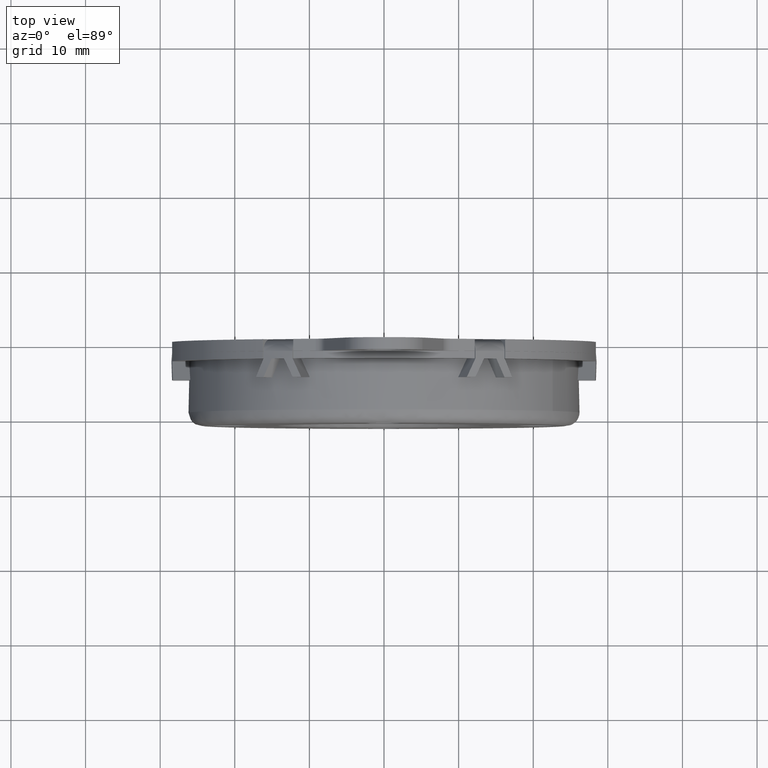
[diagram: clean part render]
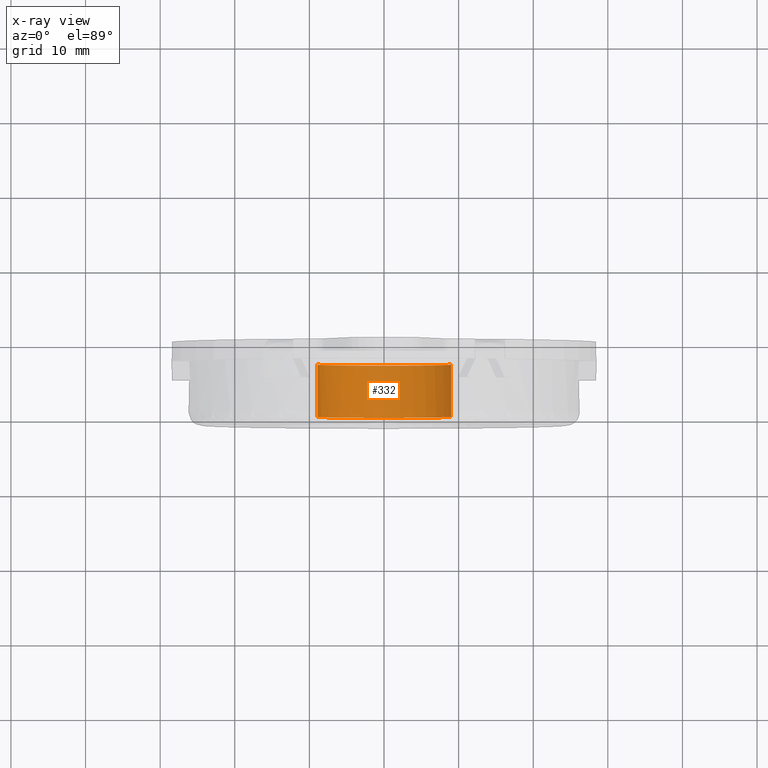
[diagram: x-ray — body ghosted, one internal face saturated and labeled with its STEP entity id]
A machine part, top view, then the same camera in x-ray: the body is ghosted and one INTERNAL B-rep face — a face not visible from any outside direction — is saturated and labeled: STEP entity #332.
In plain terms, the highlighted face is a freeform B-spline surface patch.
Its self-contained STEP definition (entity closure, byte-faithful):
#230=CARTESIAN_POINT('',(-8.946170441121918,-2.825000000000000,-0.991052188779172));
#231=CARTESIAN_POINT('',(-8.938302605565998,-2.824999999999999,-1.053946840004247));
#232=CARTESIAN_POINT('',(-7.935581323198988,-2.825000000000000,-9.069595474522000));
#233=CARTESIAN_POINT('',(0.078538819485365,-2.824999999999999,-8.999657307577538));
#234=CARTESIAN_POINT('',(9.078196127062903,-2.824999999999999,-8.921118488092173));
#235=CARTESIAN_POINT('',(8.999125662922731,-2.824999999999998,0.139459262827968));
#236=CARTESIAN_POINT('',(8.998596991281101,-2.824999999999999,0.200039032604139));
#237=CARTESIAN_POINT('',(-8.946170441121918,-10.179375000000004,-0.991052188779172));
#238=CARTESIAN_POINT('',(-8.938302605565998,-10.179375000000004,-1.053946840004247));
#239=CARTESIAN_POINT('',(-7.935581323198988,-10.179375000000002,-9.069595474522000));
#240=CARTESIAN_POINT('',(0.078538819485365,-10.179375000000000,-8.999657307577538));
#241=CARTESIAN_POINT('',(9.078196127062903,-10.179375000000002,-8.921118488092173));
#242=CARTESIAN_POINT('',(8.999125662922731,-10.179374999999999,0.139459262827968));
#243=CARTESIAN_POINT('',(8.998596991281101,-10.179374999999999,0.200039032604139));
#251=(BOUNDED_SURFACE()B_SPLINE_SURFACE(2,1,((#230,#237),(#231,#238),(#232,#239),(#233,#240),(#234,#241),(#235,#242),(#236,#243)),.UNSPECIFIED.,.F.,.F.,.U.)B_SPLINE_SURFACE_WITH_KNOTS((3,1,2,1,3),(2,2),(0.0,0.143170918005522,13.861924103802419,28.773612349233840,28.916764646376279),(0.0,7.354375000000005),.UNSPECIFIED.)GEOMETRIC_REPRESENTATION_ITEM()RATIONAL_B_SPLINE_SURFACE(((0.961610517450212,0.961610517450212),(0.959248317820436,0.959248317820436),(0.730538238691624,0.730538238691624),(1.0,1.0),(0.707106781186548,0.707106781186548),(1.002811776668107,1.002811776668107),(1.005623553336214,1.005623553336214)))REPRESENTATION_ITEM('')SURFACE());
#252=CARTESIAN_POINT('',(-8.930395924418910,-10.0,-1.117152018805907));
#253=VERTEX_POINT('',#252);
#254=CARTESIAN_POINT('',(0.0,-10.0,-9.0));
#255=VERTEX_POINT('',#254);
#256=CARTESIAN_POINT('',(-8.930395924418910,-10.0,-1.117152018805907));
#257=CARTESIAN_POINT('',(-7.944287401195272,-10.000000000000002,-9.000000000000002));
#258=CARTESIAN_POINT('',(0.0,-10.0,-9.0));
#266=(BOUNDED_CURVE()B_SPLINE_CURVE(2,(#256,#257,#258),.UNSPECIFIED.,.F.,.U.)B_SPLINE_CURVE_WITH_KNOTS((3,3),(0.271473928974004,0.500000000000000),.UNSPECIFIED.)CURVE()GEOMETRIC_REPRESENTATION_ITEM()RATIONAL_B_SPLINE_CURVE((0.954005430268310,0.732265053897617,1.0))REPRESENTATION_ITEM(''));
#267=EDGE_CURVE('',#253,#255,#266,.T.);
#268=ORIENTED_EDGE('',*,*,#267,.F.);
#269=CARTESIAN_POINT('',(-8.930397986177338,-3.0,-1.117135537078565));
#270=VERTEX_POINT('',#269);
#271=CARTESIAN_POINT('',(-8.930397986177338,-3.0,-1.117135537078565));
#272=CARTESIAN_POINT('',(-8.930395924418910,-10.0,-1.117152018805907));
#273=QUASI_UNIFORM_CURVE('',1,(#271,#272),.UNSPECIFIED.,.F.,.U.);
#274=EDGE_CURVE('',#270,#253,#273,.T.);
#275=ORIENTED_EDGE('',*,*,#274,.F.);
#276=CARTESIAN_POINT('',(0.0,-3.0,-9.0));
#277=VERTEX_POINT('',#276);
#278=CARTESIAN_POINT('',(0.0,-3.0,-9.0));
#279=CARTESIAN_POINT('',(-7.944302177346002,-3.0,-9.0));
#280=CARTESIAN_POINT('',(-8.930397986177338,-3.000000000000000,-1.117135537078565));
#288=(BOUNDED_CURVE()B_SPLINE_CURVE(2,(#278,#279,#280),.UNSPECIFIED.,.F.,.U.)B_SPLINE_CURVE_WITH_KNOTS((3,3),(0.500000000000000,0.728526382276606),.UNSPECIFIED.)CURVE()GEOMETRIC_REPRESENTATION_ITEM()RATIONAL_B_SPLINE_CURVE((1.0,0.732264689244846,0.954006034286317))REPRESENTATION_ITEM(''));
#289=EDGE_CURVE('',#277,#270,#288,.T.);
#290=ORIENTED_EDGE('',*,*,#289,.F.);
#291=CARTESIAN_POINT('',(8.999657307577042,-3.0,0.078538819542219));
#292=VERTEX_POINT('',#291);
#293=CARTESIAN_POINT('',(8.999657307577042,-3.000000000000000,0.078538819542219));
#294=CARTESIAN_POINT('',(9.0,-3.000000000000000,0.039270157443171));
#295=CARTESIAN_POINT('',(9.0,-3.0,0.0));
#296=CARTESIAN_POINT('',(9.0,-3.000000000000000,-9.0));
#297=CARTESIAN_POINT('',(0.0,-3.0,-9.0));
#305=(BOUNDED_CURVE()B_SPLINE_CURVE(2,(#293,#294,#295,#296,#297),.UNSPECIFIED.,.F.,.U.)B_SPLINE_CURVE_WITH_KNOTS((3,2,3),(0.248460105662787,0.250000000000000,0.500000000000000),.UNSPECIFIED.)CURVE()GEOMETRIC_REPRESENTATION_ITEM()RATIONAL_B_SPLINE_CURVE((0.996414028095255,0.998195901563765,1.0,0.707106781186547,1.0))REPRESENTATION_ITEM(''));
#306=EDGE_CURVE('',#292,#277,#305,.T.);
#307=ORIENTED_EDGE('',*,*,#306,.F.);
#308=CARTESIAN_POINT('',(8.999657307576937,-10.0,0.078538819554439));
#309=VERTEX_POINT('',#308);
#310=CARTESIAN_POINT('',(8.999657307577042,-3.0,0.078538819542219));
#311=CARTESIAN_POINT('',(8.999657307576937,-10.0,0.078538819554439));
#312=QUASI_UNIFORM_CURVE('',1,(#310,#311),.UNSPECIFIED.,.F.,.U.);
#313=EDGE_CURVE('',#292,#309,#312,.T.);
#314=ORIENTED_EDGE('',*,*,#313,.T.);
#315=CARTESIAN_POINT('',(0.0,-10.0,-9.0));
#316=CARTESIAN_POINT('',(9.0,-10.0,-9.0));
#317=CARTESIAN_POINT('',(9.0,-10.0,0.0));
#318=CARTESIAN_POINT('',(9.0,-10.000000000000002,0.039270157455398));
#319=CARTESIAN_POINT('',(8.999657307576937,-10.0,0.078538819554439));
#327=(BOUNDED_CURVE()B_SPLINE_CURVE(2,(#315,#316,#317,#318,#319),.UNSPECIFIED.,.F.,.U.)B_SPLINE_CURVE_WITH_KNOTS((3,2,3),(0.500000000000000,0.750000000000000,0.751539894337691),.UNSPECIFIED.)CURVE()GEOMETRIC_REPRESENTATION_ITEM()RATIONAL_B_SPLINE_CURVE((1.0,0.707106781186547,1.0,0.998195901563204,0.996414028094148))REPRESENTATION_ITEM(''));
#328=EDGE_CURVE('',#255,#309,#327,.T.);
#329=ORIENTED_EDGE('',*,*,#328,.F.);
#330=EDGE_LOOP('',(#268,#275,#290,#307,#314,#329));
#331=FACE_OUTER_BOUND('',#330,.T.);
#332=ADVANCED_FACE('',(#331),#251,.T.);